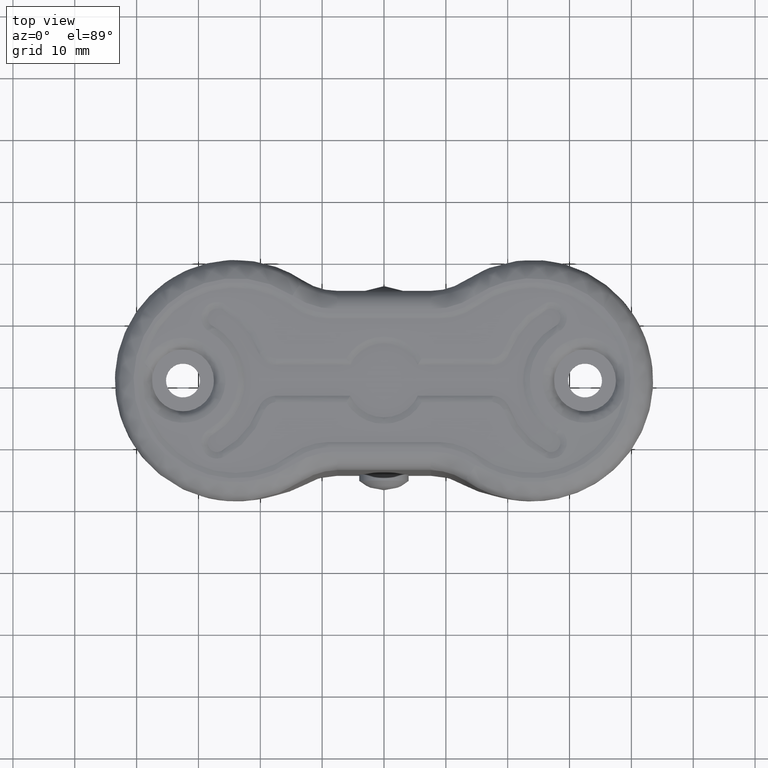
[diagram: clean part render]
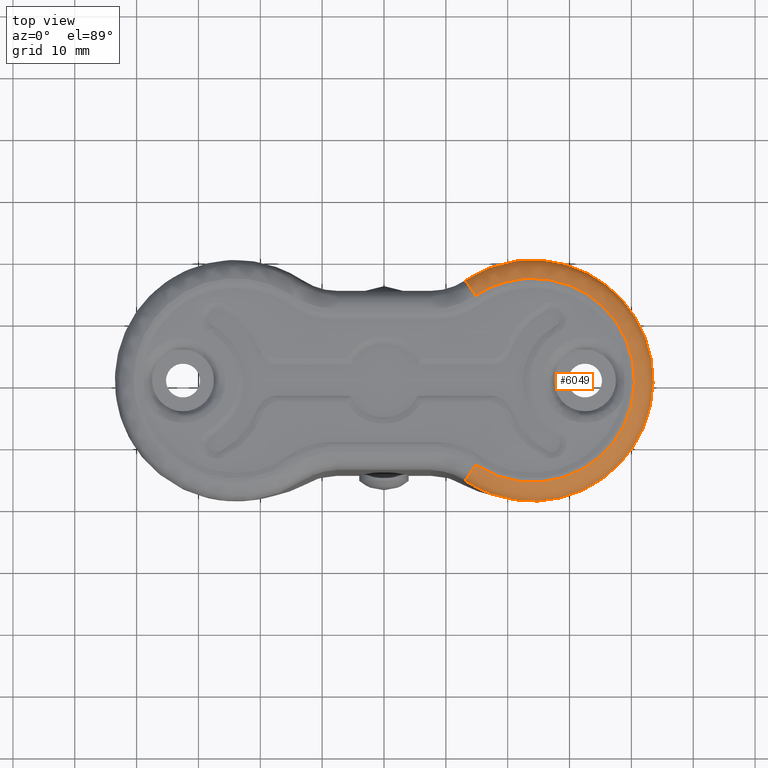
[diagram: same view with one face highlighted and labeled with its STEP entity id]
A machine part, top view. The second image highlights one B-rep face of the part: STEP entity #6049.
In plain terms, the highlighted face is a freeform B-spline surface patch.
Its self-contained STEP definition (entity closure, byte-faithful):
#5858=CARTESIAN_POINT('',(14.809401168457759,13.703389840388200,0.0));
#5859=VERTEX_POINT('',#5858);
#5860=CARTESIAN_POINT('',(13.138383149261101,16.194915232496399,-3.0));
#5861=VERTEX_POINT('',#5860);
#5862=CARTESIAN_POINT('',(14.809401168457759,13.703389840388200,0.0));
#5863=CARTESIAN_POINT('',(13.138383149261083,16.194915232496417,0.0));
#5864=CARTESIAN_POINT('',(13.138383149261079,16.194915232496420,-3.0));
#5872=(BOUNDED_CURVE()B_SPLINE_CURVE(2,(#5862,#5863,#5864),.UNSPECIFIED.,.F.,.U.)CURVE()GEOMETRIC_REPRESENTATION_ITEM()QUASI_UNIFORM_CURVE()RATIONAL_B_SPLINE_CURVE((1.0,0.707106781186548,1.0))REPRESENTATION_ITEM(''));
#5873=EDGE_CURVE('',#5859,#5861,#5872,.T.);
#5966=CARTESIAN_POINT('',(11.610547289041996,-15.048812981070713,-3.209172803346701));
#5967=CARTESIAN_POINT('',(25.719948504510736,-26.664862656142539,-3.209172803346701));
#5968=CARTESIAN_POINT('',(38.220112007244211,-13.332431328071268,-3.209172803346701));
#5969=CARTESIAN_POINT('',(50.720275509977697,1.636091E-015,-3.209172803346701));
#5970=CARTESIAN_POINT('',(38.220112007244211,13.332431328071268,-3.209172803346701));
#5971=CARTESIAN_POINT('',(25.719948504510718,26.664862656142539,-3.209172803346701));
#5972=CARTESIAN_POINT('',(11.610547289041996,15.048812981070713,-3.209172803346701));
#5973=CARTESIAN_POINT('',(11.457674664993771,-15.234499272701060,0.232007118824612));
#5974=CARTESIAN_POINT('',(25.741170833474435,-26.993878603757771,0.232007118824612));
#5975=CARTESIAN_POINT('',(38.395573013272696,-13.496939301878886,0.232007118824612));
#5976=CARTESIAN_POINT('',(51.049975193070956,1.656279E-015,0.232007118824612));
#5977=CARTESIAN_POINT('',(38.395573013272696,13.496939301878891,0.232007118824612));
#5978=CARTESIAN_POINT('',(25.741170833474435,26.993878603757771,0.232007118824612));
#5979=CARTESIAN_POINT('',(11.457674664993771,15.234499272701052,0.232007118824612));
#5980=CARTESIAN_POINT('',(13.644926895020568,-12.577759663614810,-0.007222951594761));
#5981=CARTESIAN_POINT('',(25.437528591174683,-22.286424475746006,-0.007222951594761));
#5982=CARTESIAN_POINT('',(35.885133494700078,-11.143212237873000,-0.007222951594761));
#5983=CARTESIAN_POINT('',(46.332738398225480,1.367441E-015,-0.007222951594761));
#5984=CARTESIAN_POINT('',(35.885133494700078,11.143212237873000,-0.007222951594761));
#5985=CARTESIAN_POINT('',(25.437528591174669,22.286424475746006,-0.007222951594761));
#5986=CARTESIAN_POINT('',(13.644926895020568,12.577759663614810,-0.007222951594761));
#5994=(BOUNDED_SURFACE()B_SPLINE_SURFACE(2,2,((#5966,#5973,#5980),(#5967,#5974,#5981),(#5968,#5975,#5982),(#5969,#5976,#5983),(#5970,#5977,#5984),(#5971,#5978,#5985),(#5972,#5979,#5986)),.UNSPECIFIED.,.F.,.F.,.U.)B_SPLINE_SURFACE_WITH_KNOTS((3,2,2,3),(3,3),(0.0,30.835170668904890,61.670341337809788,92.505512006714682),(0.0,5.467111334495099),.UNSPECIFIED.)GEOMETRIC_REPRESENTATION_ITEM()RATIONAL_B_SPLINE_SURFACE(((0.913811094967896,0.601333181114613,0.918901000972554),(0.666634014457117,0.438678360068267,0.670347150018482),(0.913811094967896,0.601333181114613,0.918901000972554),(0.666634014457117,0.438678360068267,0.670347150018482),(0.913811094967896,0.601333181114613,0.918901000972554),(0.666634014457117,0.438678360068267,0.670347150018482),(0.913811094967896,0.601333181114613,0.918901000972554)))REPRESENTATION_ITEM('')SURFACE());
#5995=CARTESIAN_POINT('',(14.809400922112980,-13.703389859502821,0.0));
#5996=VERTEX_POINT('',#5995);
#5997=CARTESIAN_POINT('',(13.138382923455740,-16.194915265386449,-3.0));
#5998=VERTEX_POINT('',#5997);
#5999=CARTESIAN_POINT('',(14.809400922112980,-13.703389859502821,0.0));
#6000=CARTESIAN_POINT('',(13.138382923455751,-16.194915265386456,0.0));
#6001=CARTESIAN_POINT('',(13.138382923455749,-16.194915265386449,-3.0));
#6009=(BOUNDED_CURVE()B_SPLINE_CURVE(2,(#5999,#6000,#6001),.UNSPECIFIED.,.F.,.U.)CURVE()GEOMETRIC_REPRESENTATION_ITEM()QUASI_UNIFORM_CURVE()RATIONAL_B_SPLINE_CURVE((1.0,0.707106781186548,1.0))REPRESENTATION_ITEM(''));
#6010=EDGE_CURVE('',#5996,#5998,#6009,.T.);
#6011=ORIENTED_EDGE('',*,*,#6010,.T.);
#6012=CARTESIAN_POINT('',(13.138383149261079,16.194915232496410,-3.0));
#6013=CARTESIAN_POINT('',(27.357451354967317,25.731369644743310,-3.0));
#6014=CARTESIAN_POINT('',(38.653469060258033,12.865684766076800,-3.0));
#6015=CARTESIAN_POINT('',(49.949486765548748,-0.000000112589705,-3.0));
#6016=CARTESIAN_POINT('',(38.653468948614687,-12.865684893233830,-3.0));
#6017=CARTESIAN_POINT('',(27.357451131680634,-25.731369673877953,-3.0));
#6018=CARTESIAN_POINT('',(13.138382923455740,-16.194915265386449,-3.0));
#6026=(BOUNDED_CURVE()B_SPLINE_CURVE(2,(#6012,#6013,#6014,#6015,#6016,#6017,#6018),.UNSPECIFIED.,.F.,.U.)B_SPLINE_CURVE_WITH_KNOTS((3,2,2,3),(0.0,0.333333333333333,0.666666666666667,1.0),.UNSPECIFIED.)CURVE()GEOMETRIC_REPRESENTATION_ITEM()RATIONAL_B_SPLINE_CURVE((1.0,0.751459948945454,1.0,0.751459948945454,1.0,0.751459948945454,1.0))REPRESENTATION_ITEM(''));
#6027=EDGE_CURVE('',#5861,#5998,#6026,.T.);
#6028=ORIENTED_EDGE('',*,*,#6027,.F.);
#6029=ORIENTED_EDGE('',*,*,#5873,.F.);
#6030=CARTESIAN_POINT('',(14.809400922112980,-13.703389859502821,0.0));
#6031=CARTESIAN_POINT('',(26.840920175901836,-21.772697408012750,0.0));
#6032=CARTESIAN_POINT('',(36.399089099201937,-10.886348768528940,0.0));
#6033=CARTESIAN_POINT('',(45.957258022502067,-0.000000129045124,0.0));
#6034=CARTESIAN_POINT('',(36.399089227162392,10.886348622787420,0.0));
#6035=CARTESIAN_POINT('',(26.840920431822713,21.772697374619977,0.0));
#6036=CARTESIAN_POINT('',(14.809401168457770,13.703389840388200,0.0));
#6044=(BOUNDED_CURVE()B_SPLINE_CURVE(2,(#6030,#6031,#6032,#6033,#6034,#6035,#6036),.UNSPECIFIED.,.F.,.U.)B_SPLINE_CURVE_WITH_KNOTS((3,2,2,3),(0.0,0.333333333333333,0.666666666666667,1.0),.UNSPECIFIED.)CURVE()GEOMETRIC_REPRESENTATION_ITEM()RATIONAL_B_SPLINE_CURVE((1.0,0.751459949283768,1.0,0.751459949283768,1.0,0.751459949283768,1.0))REPRESENTATION_ITEM(''));
#6045=EDGE_CURVE('',#5996,#5859,#6044,.T.);
#6046=ORIENTED_EDGE('',*,*,#6045,.F.);
#6047=EDGE_LOOP('',(#6011,#6028,#6029,#6046));
#6048=FACE_OUTER_BOUND('',#6047,.T.);
#6049=ADVANCED_FACE('',(#6048),#5994,.T.);